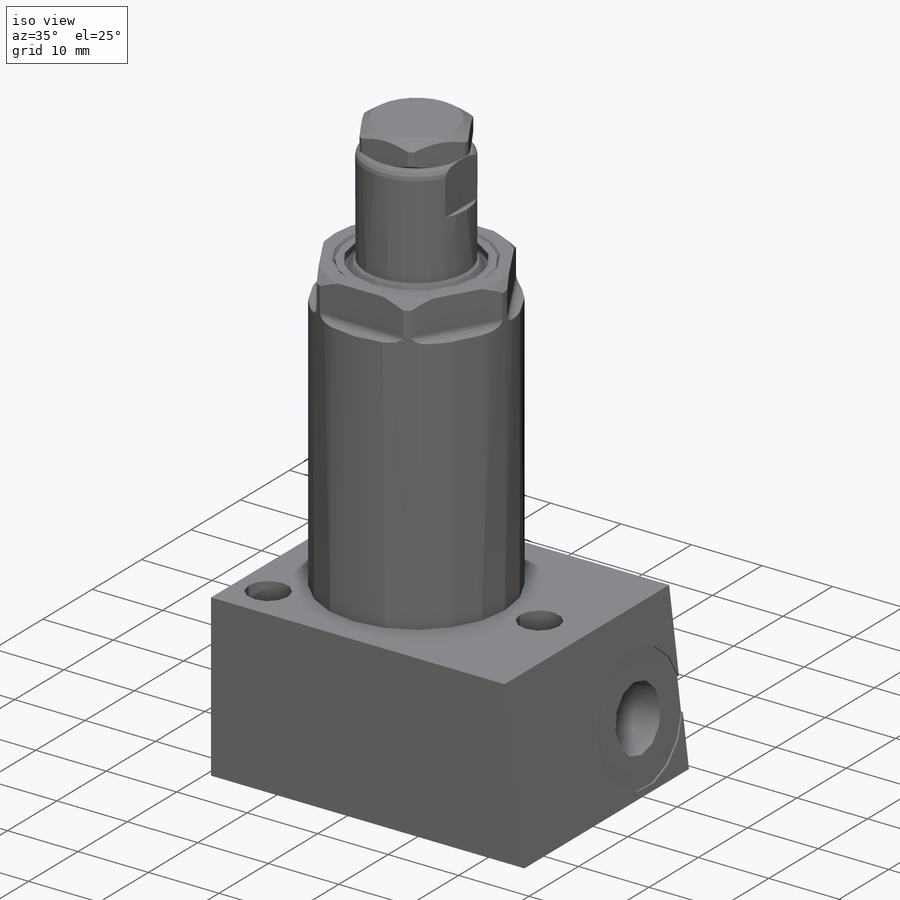
[diagram: iso view]
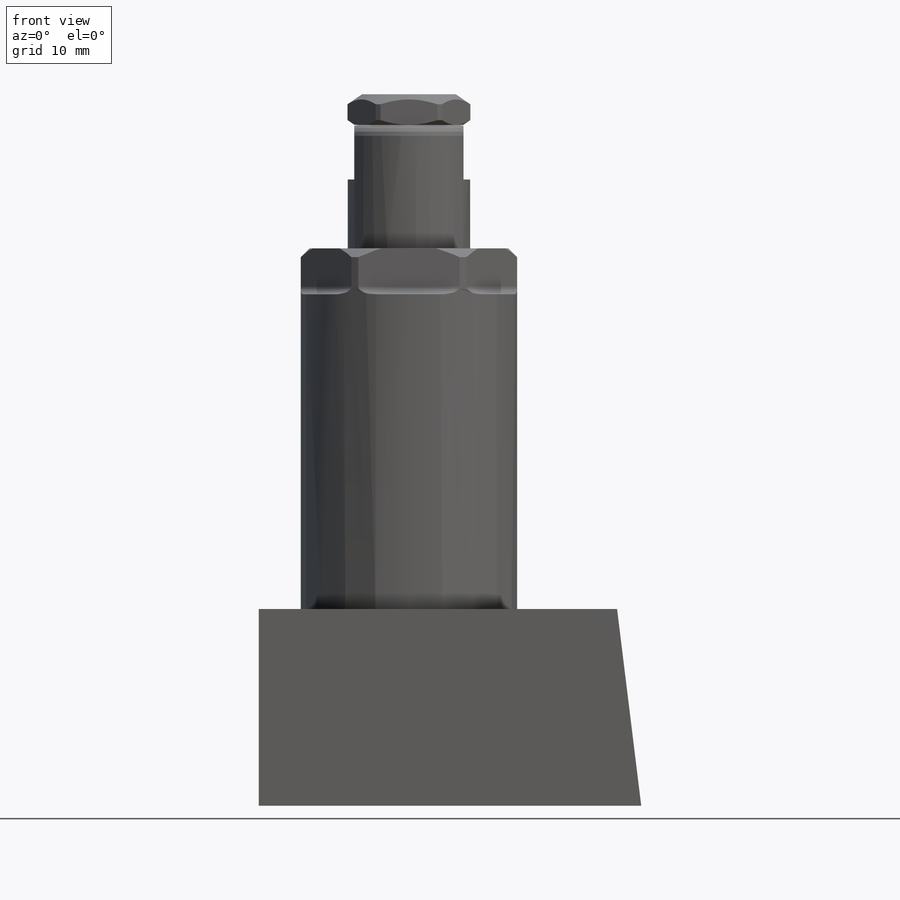
[diagram: front view]
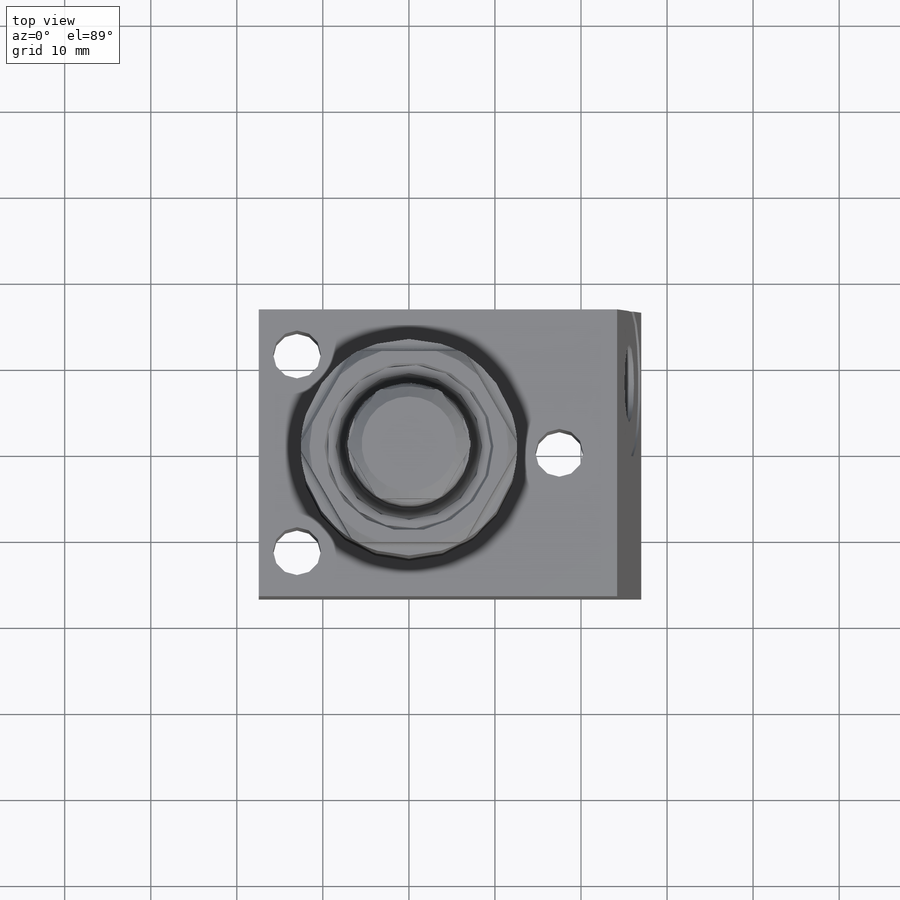
[diagram: top view]
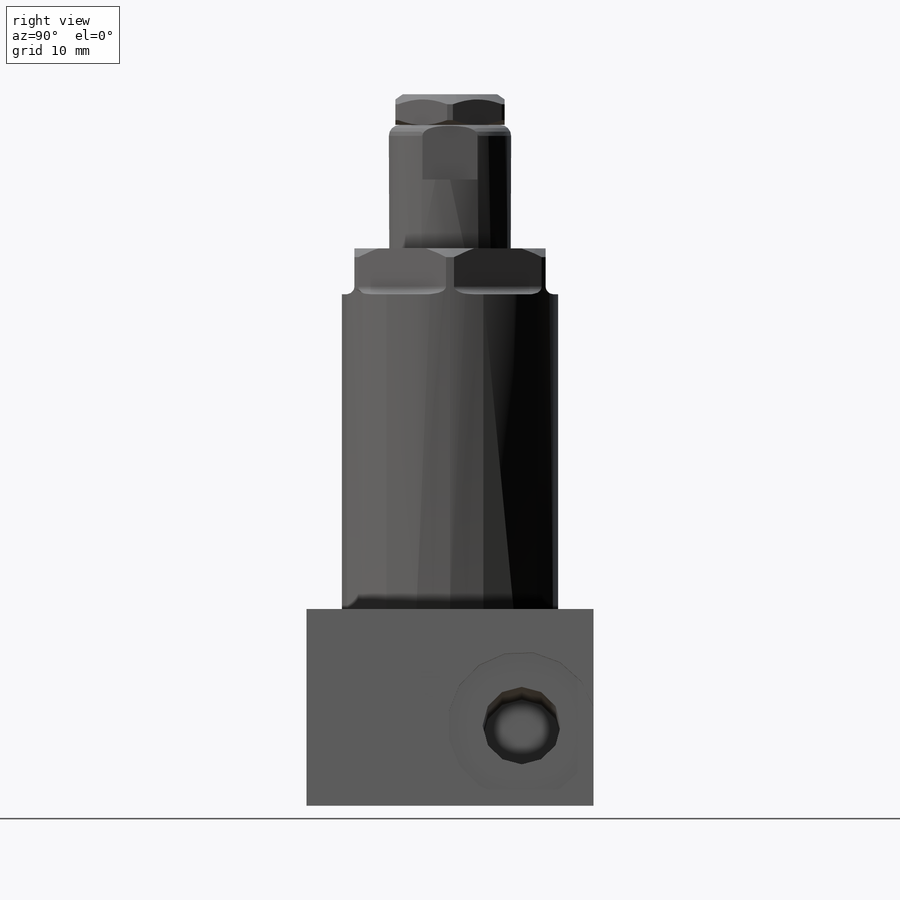
[diagram: right view]
SOLIDWORKS PART (.sldprt)
format: sldprt  version: not decoded by parser v0  size: 543,232 bytes
history: native  units: mm
features: sketch x15, cut_extrude x9, revolve x3, material x1, fillet x1, hole x1, thread x1, extrude x1 (+11 scaffold rows collapsed)
feature tree (43):
  scaffold x11  (default folders/planes/origin — collapsed)
  material  "Alloy Steel"
  sketch  "Sketch1"  dims[c1.D10=1.778mm c1.D21=0.508mm c1.D5=~90.802318mm c1.D26=~0.814283mm c2.D10=1.778mm c2.D1=25.146mm c2.D2=55.372mm c2.D3=~1.392436mm c3.D3=45.0deg c3.D4=~0.81663mm c4.D4=45.0deg c4.D5=~0.493551mm c5.D5=45.0deg c5.D6=6.1214mm c5.D7=3.81mm c5.D8=1.3208mm c5.D9=4.7752mm c5.D11=15.875mm c5.D12=17.4752mm c5.D13=23.3426mm c5.D14=0.381mm c5.D15=0.762mm c6.D5=4.9784mm c7.D5=45.0deg c8.D5=25.146mm c8.D16=~1.051559mm c9.D16=45.0deg c9.D17=1.016mm c9.D18=~0.251991mm c10.D18=60.0deg c10.D19=0.508mm c10.D20=1.016mm c10.D22=~1.223555mm c11.D22=30.0deg c11.D23=0.889mm c11.D24=0.2794mm c11.D5=25.146mm c11.D9=4.7752mm c11.D11=15.875mm c11.D12=17.4752mm c11.D13=23.3426mm c11.D25=19.05mm]
  revolve  "Revolve1"  Angle=360deg
  sketch  "Sketch2"  dims[D1=22.225mm]
  cut_extrude  "Cut-Extrude1"  Depth=5.334mm
  fillet  "Fillet1"  Radius=0.9144mm
  sketch  "Sketch3"  dims[D3=1.27mm D1=14.224mm D2=14.351mm]
  revolve  "Revolve2"  Angle=360deg
  sketch  "Sketch4"  dims[c1.D1=~6.322647mm c1.D2=~2.070736mm c2.D1=~3.161323mm c2.D2=~8.420992mm c3.D1=~6.322647mm c3.D2=~1.982995mm c4.D1=12.7mm c4.D2=6.35mm]
  cut_extrude  "Cut-Extrude2"  Depth=22.225mm
  hole  "5/16-18 Tapped Hole1"  Diameter=6.8834mm Depth=5.08mm
  sketch  "Sketch6"
  sketch  "Sketch5"  dims[hole-wizard template sketch: 46 standard entries collapsed; hole parameters kept: c15.Tap Drill Dia.=6.8834mm c15.Tap Drill Depth=5.08mm c15.D3=~14.816244mm c15.Drill Angle=180.0deg]
  thread  "Hole Thread1"  Diameter=5.08mm  [1 undecoded]
  sketch  "Sketch7"  dims[c1.D1=~1.097666mm c1.D2=~7.438728mm c2.D1=14.3002mm c2.D2=3.556mm c2.D3=~0.757947mm c3.D3=35.0deg c3.D4=7.1501mm c4.D4=35.0deg c4.D5=10.9982mm c4.D2=12.7mm c4.D6=3.556mm]
  revolve  "Revolve3"  Angle=360deg
  sketch  "Sketch8"  dims[D1=12.7mm D2=~14.664697mm]
  cut_extrude  "Cut-Extrude3"  Depth=3.556mm
  sketch  "Sketch9"  dims[c1.D1=22.86mm c1.D2=44.45mm c1.D3=17.4498mm c1.D4=44.45mm c2.D4=83.0deg c2.D5=41.91mm]
  extrude  "Boss-Extrude1"  Depth=33.3502mm
  sketch  "Sketch10"  dims[D5=5.5626mm D1=22.86mm D2=11.43mm D3=13.0048mm D4=17.4752mm]
  cut_extrude  "Cut-Extrude4"  Depth=33.3502mm
  sketch  "Sketch11"  dims[D1=17.272mm D2=9.398mm D3=8.3312mm]
  cut_extrude  "Cut-Extrude5"  Depth=0.254mm
  sketch  "Sketch12"  dims[D1=9.0932mm]
  cut_extrude  "Cut-Extrude6"  Depth=12.192mm
  sketch  "Sketch13"  dims[c1.D1=12.7mm c1.D2=9.7282mm c1.D3=~10.960903mm c2.D3=90.0deg c3.D3=34.925mm]
  cut_extrude  "Cut-Extrude7"  Depth=2.54mm
  sketch  "Sketch14"  dims[D1=9.017mm]
  cut_extrude  "Cut-Extrude8"  Depth=2.286mm
  sketch  "Sketch15"  dims[D1=6.9088mm]
  cut_extrude  "Cut-Extrude9"  Depth=12.2936mm
decode coverage: 30 of 31 modeling features carry decoded parameters
note: ~ marks probable driven/reference dimensions
note: 1 parameter value undecoded
note: suppression state not decoded; provenance and decode notes live in map.json
